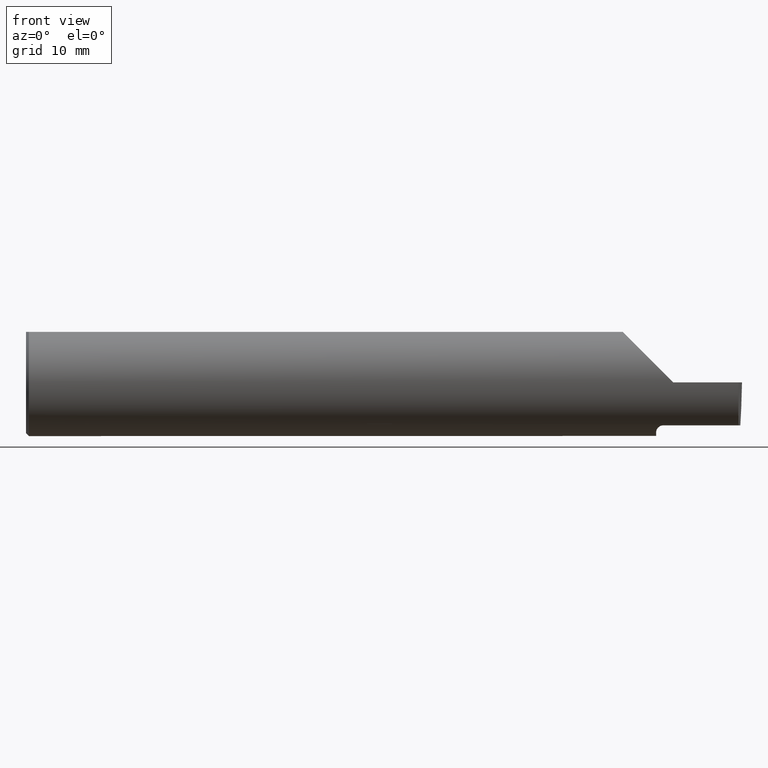
[diagram: clean part render]
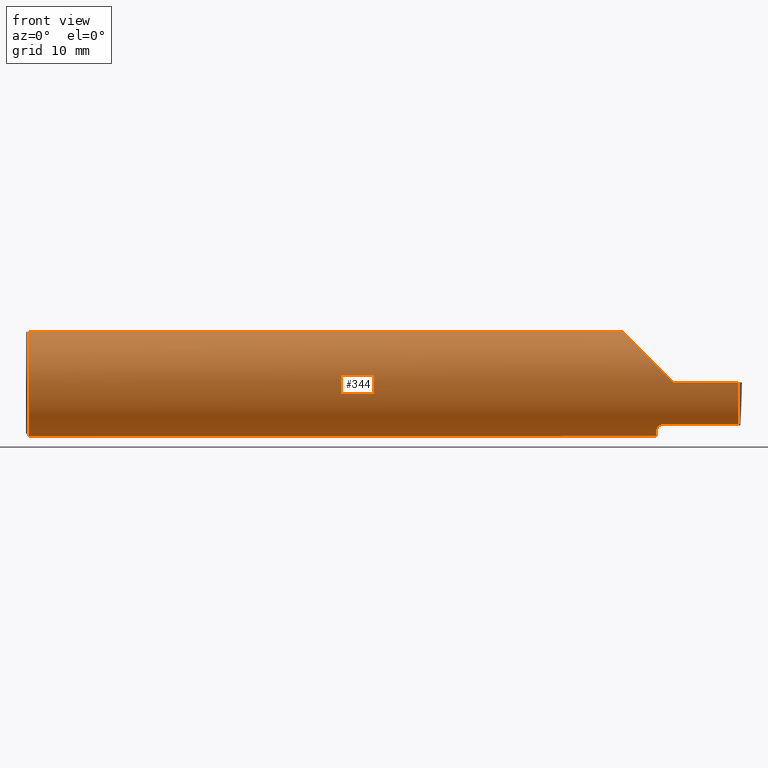
[diagram: same view with one face highlighted and labeled with its STEP entity id]
A machine part, front view. The second image highlights one B-rep face of the part: STEP entity #344.
In plain terms, the highlighted cylindrical surface (partial cylindrical patch) has radius 4.7587 mm, axis along (-1, -0, -0).
Its self-contained STEP definition (entity closure, byte-faithful):
#15 = CARTESIAN_POINT ( 'NONE',  ( 2.200000000000000178, 0.000000000000000000, 0.000000000000000000 ) ) ;
#40 = CARTESIAN_POINT ( 'NONE',  ( 2.488131149766799943, -0.1873499999999999888, 0.000000000000000000 ) ) ;
#43 = CARTESIAN_POINT ( 'NONE',  ( 0.000000000000000000, 0.000000000000000000, 0.000000000000000000 ) ) ;
#44 = VERTEX_POINT ( 'NONE', #61 ) ;
#53 = CARTESIAN_POINT ( 'NONE',  ( 2.200000000000000178, -0.06851976604679038685, -0.1743704796142199753 ) ) ;
#54 = EDGE_CURVE ( 'NONE', #252, #368, #698, .T. ) ;
#56 = CARTESIAN_POINT ( 'NONE',  ( 0.000000000000000000, 0.06325108694718235836, 0.1763499999999999235 ) ) ;
#59 = EDGE_CURVE ( 'NONE', #44, #404, #452, .T. ) ;
#60 = CARTESIAN_POINT ( 'NONE',  ( 2.083649999999998670, -0.06325108694718283020, 0.1763499999999999235 ) ) ;
#61 = CARTESIAN_POINT ( 'NONE',  ( 2.083649999999998670, 0.06325108694718283020, 0.1763499999999999235 ) ) ;
#63 = CARTESIAN_POINT ( 'NONE',  ( 2.487084196965268390, -0.1623470442677540371, -0.1099340280425340211 ) ) ;
#65 = CARTESIAN_POINT ( 'NONE',  ( 0.009999999999999346217, -0.06325108694718235836, 0.1763499999999999235 ) ) ;
#69 = ORIENTED_EDGE ( 'NONE', *, *, #398, .T. ) ;
#76 = LINE ( 'NONE', #191, #374 ) ;
#102 = ORIENTED_EDGE ( 'NONE', *, *, #172, .T. ) ;
#103 = DIRECTION ( 'NONE',  ( 1.000000000000000000, 5.045929899059384297E-16, 0.000000000000000000 ) ) ;
#106 = AXIS2_PLACEMENT_3D ( 'NONE', #43, #433, #439 ) ;
#107 = AXIS2_PLACEMENT_3D ( 'NONE', #15, #103, #425 ) ;
#111 = EDGE_CURVE ( 'NONE', #368, #132, #76, .T. ) ;
#116 = CARTESIAN_POINT ( 'NONE',  ( 0.009999999999999346217, 0.000000000000000000, 0.000000000000000000 ) ) ;
#121 = DIRECTION ( 'NONE',  ( 1.000000000000000000, 0.000000000000000000, 0.000000000000000000 ) ) ;
#122 = ORIENTED_EDGE ( 'NONE', *, *, #54, .T. ) ;
#132 = VERTEX_POINT ( 'NONE', #628 ) ;
#134 = CARTESIAN_POINT ( 'NONE',  ( 2.200358271039143165, -0.07873626113568053808, -0.1700887912276896896 ) ) ;
#140 = CARTESIAN_POINT ( 'NONE',  ( 2.215028532764138358, -0.1137241120808232253, -0.1488947809299406011 ) ) ;
#144 = CARTESIAN_POINT ( 'NONE',  ( 2.202960551809340028, -0.09317341542745717631, -0.1626248379125198873 ) ) ;
#160 = FACE_OUTER_BOUND ( 'NONE', #512, .T. ) ;
#166 = VECTOR ( 'NONE', #584, 39.37007874015748143 ) ;
#172 = EDGE_CURVE ( 'NONE', #495, #683, #441, .T. ) ;
#186 = CIRCLE ( 'NONE', #680, 0.1873499999999999888 ) ;
#191 = CARTESIAN_POINT ( 'NONE',  ( 3.749399456654646757E-32, -0.1873499999999999610, 3.061616997868383634E-16 ) ) ;
#195 = CARTESIAN_POINT ( 'NONE',  ( 2.213203859946834662, -0.1120371980050636346, -0.1501764597936561252 ) ) ;
#204 = DIRECTION ( 'NONE',  ( 0.000000000000000000, 0.000000000000000000, -1.000000000000000000 ) ) ;
#216 = DIRECTION ( 'NONE',  ( -1.000000000000000000, -5.045929899059384297E-16, -0.000000000000000000 ) ) ;
#219 = CYLINDRICAL_SURFACE ( 'NONE', #106, 0.1873499999999999888 ) ;
#223 = CARTESIAN_POINT ( 'NONE',  ( 0.009999999999999346217, 0.06325108694718235836, 0.1763499999999999235 ) ) ;
#246 = DIRECTION ( 'NONE',  ( 1.000000000000000000, 0.000000000000000000, 0.000000000000000000 ) ) ;
#250 = CARTESIAN_POINT ( 'NONE',  ( 2.206304331342287650, -0.1022198306720688427, -0.1570962426853820260 ) ) ;
#252 = VERTEX_POINT ( 'NONE', #646 ) ;
#256 = CARTESIAN_POINT ( 'NONE',  ( 2.208439486659306450, -0.1064616213911155768, -0.1542305641651502135 ) ) ;
#266 =( BOUNDED_CURVE ( )  B_SPLINE_CURVE ( 3, ( #445, #560, #555, #395 ),
 .UNSPECIFIED., .F., .F. ) 
 B_SPLINE_CURVE_WITH_KNOTS ( ( 4, 4 ),
 ( 4.712388980384688786, 5.938809479923471635 ),
 .UNSPECIFIED. ) 
 CURVE ( )  GEOMETRIC_REPRESENTATION_ITEM ( )  RATIONAL_B_SPLINE_CURVE ( ( 1.000000000000000000, 0.8785364999009659392, 0.8785364999009659392, 1.000000000000000000 ) ) 
 REPRESENTATION_ITEM ( '' )  );
#283 = CIRCLE ( 'NONE', #107, 0.1873499999999999888 ) ;
#296 = DIRECTION ( 'NONE',  ( -1.000000000000000000, -0.000000000000000000, -0.000000000000000000 ) ) ;
#300 = DIRECTION ( 'NONE',  ( -1.000000000000000000, -0.000000000000000000, -0.000000000000000000 ) ) ;
#303 = CARTESIAN_POINT ( 'NONE',  ( 0.009999999999999346217, 0.000000000000000000, 0.000000000000000000 ) ) ;
#315 = CARTESIAN_POINT ( 'NONE',  ( 2.200000000000000178, 0.1774824568795465018, 0.05999999999999961614 ) ) ;
#322 = EDGE_CURVE ( 'NONE', #44, #669, #341, .T. ) ;
#323 = CARTESIAN_POINT ( 'NONE',  ( 2.103305020982357387, 0.1180511404724818164, 0.1566949790176410395 ) ) ;
#332 = ORIENTED_EDGE ( 'NONE', *, *, #686, .F. ) ;
#340 = CARTESIAN_POINT ( 'NONE',  ( 2.487121452143544964, -0.1873499999999999610, -0.05781030015605127109 ) ) ;
#341 =( BOUNDED_CURVE ( )  B_SPLINE_CURVE ( 3, ( #484, #323, #700, #536 ),
 .UNSPECIFIED., .F., .F. ) 
 B_SPLINE_CURVE_WITH_KNOTS ( ( 4, 4 ),
 ( 0.3443758272561143752, 1.244796402594305018 ),
 .UNSPECIFIED. ) 
 CURVE ( )  GEOMETRIC_REPRESENTATION_ITEM ( )  RATIONAL_B_SPLINE_CURVE ( ( 1.000000000000000000, 0.9335704097038357574, 0.9335704097038357574, 1.000000000000000000 ) ) 
 REPRESENTATION_ITEM ( '' )  );
#344 = ADVANCED_FACE ( 'NONE', ( #160 ), #219, .T. ) ;
#348 = EDGE_CURVE ( 'NONE', #495, #454, #642, .T. ) ;
#359 = CARTESIAN_POINT ( 'NONE',  ( 2.200000000000000178, -0.06851976604679038685, -0.1743704796142199753 ) ) ;
#368 = VERTEX_POINT ( 'NONE', #40 ) ;
#373 = EDGE_CURVE ( 'NONE', #252, #699, #489, .T. ) ;
#374 = VECTOR ( 'NONE', #300, 39.37007874015748143 ) ;
#377 = ORIENTED_EDGE ( 'NONE', *, *, #373, .F. ) ;
#380 = ORIENTED_EDGE ( 'NONE', *, *, #661, .F. ) ;
#383 = VECTOR ( 'NONE', #216, 39.37007874015748143 ) ;
#392 = VECTOR ( 'NONE', #296, 39.37007874015748143 ) ;
#394 = CARTESIAN_POINT ( 'NONE',  ( 2.488026713523223243, -0.1172600179964004286, -0.1461167706989304482 ) ) ;
#395 = CARTESIAN_POINT ( 'NONE',  ( 2.083649999999998670, -0.06325108694718283020, 0.1763499999999999235 ) ) ;
#398 = EDGE_CURVE ( 'NONE', #683, #404, #186, .T. ) ;
#399 = CARTESIAN_POINT ( 'NONE',  ( 2.488131149766799943, -0.1873499999999999888, 0.000000000000000000 ) ) ;
#404 = VERTEX_POINT ( 'NONE', #223 ) ;
#408 = ORIENTED_EDGE ( 'NONE', *, *, #322, .T. ) ;
#425 = DIRECTION ( 'NONE',  ( 0.000000000000000000, 1.000000000000000000, 0.000000000000000000 ) ) ;
#426 = CARTESIAN_POINT ( 'NONE',  ( 0.000000000000000000, -0.06325108694718235836, 0.1763499999999999235 ) ) ;
#429 = CARTESIAN_POINT ( 'NONE',  ( 2.330930449999999876, -0.1172600179964005118, -0.1461167706989304482 ) ) ;
#433 = DIRECTION ( 'NONE',  ( -1.000000000000000000, -0.000000000000000000, -0.000000000000000000 ) ) ;
#439 = DIRECTION ( 'NONE',  ( 0.000000000000000000, 0.000000000000000000, 1.000000000000000000 ) ) ;
#440 = VERTEX_POINT ( 'NONE', #53 ) ;
#441 = CIRCLE ( 'NONE', #648, 0.1873499999999999888 ) ;
#445 = CARTESIAN_POINT ( 'NONE',  ( 2.260000000000000231, -0.1873499999999999888, 2.939152317953647352E-17 ) ) ;
#447 = EDGE_CURVE ( 'NONE', #132, #454, #266, .T. ) ;
#452 = LINE ( 'NONE', #56, #392 ) ;
#454 = VERTEX_POINT ( 'NONE', #60 ) ;
#464 = CARTESIAN_POINT ( 'NONE',  ( 2.201843912362377864, -0.08846956905169064966, -0.1652353808078973474 ) ) ;
#484 = CARTESIAN_POINT ( 'NONE',  ( 2.083649999999998670, 0.06325108694718283020, 0.1763499999999999235 ) ) ;
#489 = LINE ( 'NONE', #429, #383 ) ;
#495 = VERTEX_POINT ( 'NONE', #65 ) ;
#509 = ORIENTED_EDGE ( 'NONE', *, *, #348, .F. ) ;
#510 = CARTESIAN_POINT ( 'NONE',  ( 0.009999999999999346217, 0.000000000000000000, -0.1873499999999999888 ) ) ;
#512 = EDGE_LOOP ( 'NONE', ( #377, #122, #578, #581, #509, #102, #69, #631, #408, #332, #380 ) ) ;
#536 = CARTESIAN_POINT ( 'NONE',  ( 2.200000000000000178, 0.1774824568795465018, 0.05999999999999961614 ) ) ;
#548 = DIRECTION ( 'NONE',  ( 0.000000000000000000, 0.000000000000000000, -1.000000000000000000 ) ) ;
#555 = CARTESIAN_POINT ( 'NONE',  ( 2.111272250967329622, -0.1402645296119147678, 0.1487277490326685825 ) ) ;
#560 = CARTESIAN_POINT ( 'NONE',  ( 2.178182770154592163, -0.1873500000000000443, 0.08181722984540684696 ) ) ;
#563 = CARTESIAN_POINT ( 'NONE',  ( 2.222174967710398796, -0.1172600179964002620, -0.1461167706989306703 ) ) ;
#576 = CARTESIAN_POINT ( 'NONE',  ( 2.199999999999999289, -0.07368234487347168071, -0.1723418180300748670 ) ) ;
#578 = ORIENTED_EDGE ( 'NONE', *, *, #111, .T. ) ;
#579 = CARTESIAN_POINT ( 'NONE',  ( 2.225000000000000089, -0.1172600179964003314, -0.1461167706989305870 ) ) ;
#581 = ORIENTED_EDGE ( 'NONE', *, *, #447, .T. ) ;
#583 = CARTESIAN_POINT ( 'NONE',  ( 2.225000000000000089, -0.1172600179964003314, -0.1461167706989305870 ) ) ;
#584 = DIRECTION ( 'NONE',  ( 1.000000000000000000, 0.000000000000000000, 0.000000000000000000 ) ) ;
#628 = CARTESIAN_POINT ( 'NONE',  ( 2.260000000000000231, -0.1873499999999999888, 2.939152317953647352E-17 ) ) ;
#630 = CARTESIAN_POINT ( 'NONE',  ( 2.219511795768554840, -0.1163687266324231473, -0.1468371510166791294 ) ) ;
#631 = ORIENTED_EDGE ( 'NONE', *, *, #59, .F. ) ;
#642 = LINE ( 'NONE', #426, #166 ) ;
#646 = CARTESIAN_POINT ( 'NONE',  ( 2.488026713523223243, -0.1172600179964004286, -0.1461167706989304482 ) ) ;
#648 = AXIS2_PLACEMENT_3D ( 'NONE', #303, #246, #204 ) ;
#661 = EDGE_CURVE ( 'NONE', #699, #440, #672, .T. ) ;
#669 = VERTEX_POINT ( 'NONE', #315 ) ;
#672 = B_SPLINE_CURVE_WITH_KNOTS ( 'NONE', 3,
 ( #579, #563, #630, #140, #195, #256, #250, #144, #464, #134, #576, #359 ),
 .UNSPECIFIED., .F., .F.,
 ( 4, 2, 2, 2, 2, 4 ),
 ( 1.967976973658592312E-07, 0.0002120314145722267303, 0.0004238660314470875661, 0.0008475352651967973114, 0.001271204498946506894, 0.001694873732696216585 ),
 .UNSPECIFIED. ) ;
#680 = AXIS2_PLACEMENT_3D ( 'NONE', #116, #121, #548 ) ;
#683 = VERTEX_POINT ( 'NONE', #510 ) ;
#686 = EDGE_CURVE ( 'NONE', #440, #669, #283, .T. ) ;
#698 =( BOUNDED_CURVE ( )  B_SPLINE_CURVE ( 3, ( #394, #63, #340, #399 ),
 .UNSPECIFIED., .F., .T. ) 
 B_SPLINE_CURVE_WITH_KNOTS ( ( 4, 4 ),
 ( 5.852427379562186616, 6.746954780470635349 ),
 .UNSPECIFIED. ) 
 CURVE ( )  GEOMETRIC_REPRESENTATION_ITEM ( )  RATIONAL_B_SPLINE_CURVE ( ( 1.000000000000000000, 0.9344226172588800949, 0.9344226172588800949, 1.000000000000000000 ) ) 
 REPRESENTATION_ITEM ( '' )  );
#699 = VERTEX_POINT ( 'NONE', #583 ) ;
#700 = CARTESIAN_POINT ( 'NONE',  ( 2.144848040052163896, 0.1588376980957759976, 0.1151519599478345868 ) ) ;